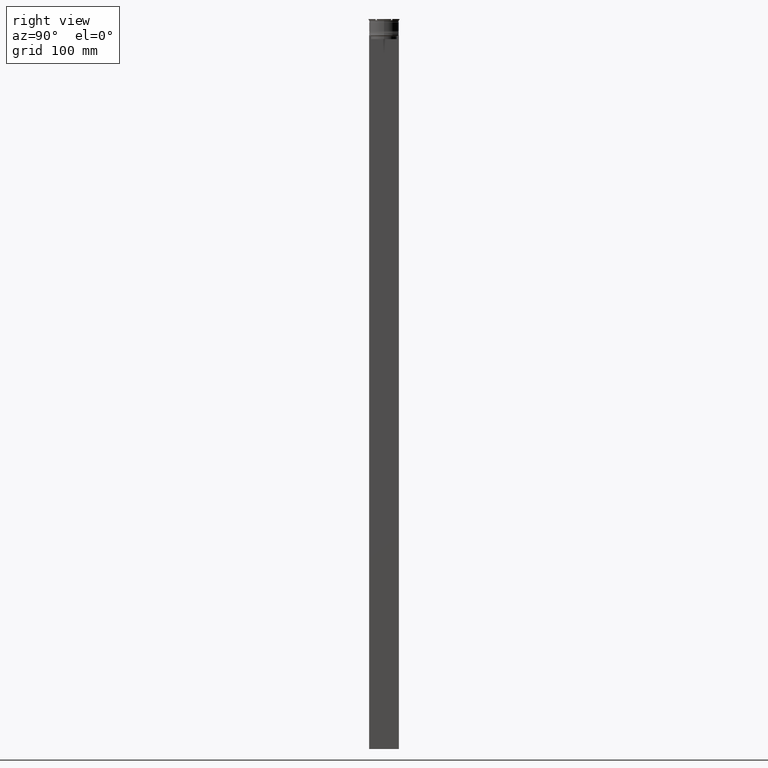
[diagram: clean part render]
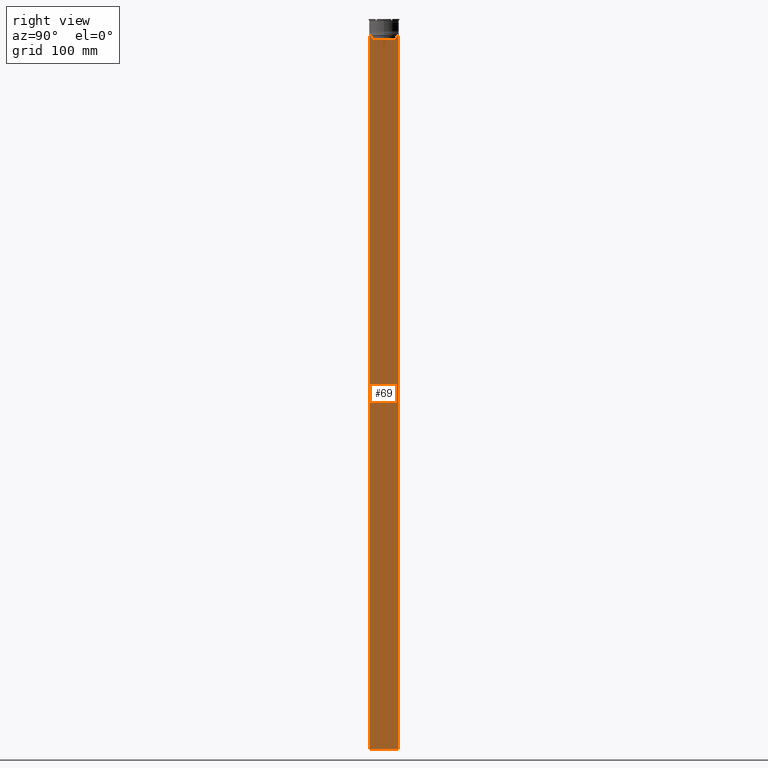
[diagram: same view with one face highlighted and labeled with its STEP entity id]
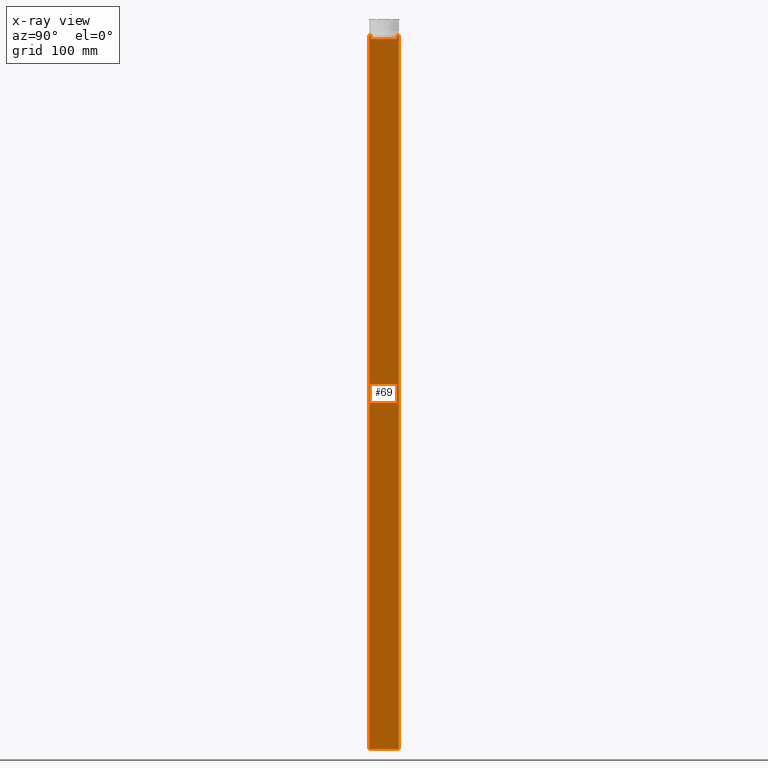
[diagram: x-ray of the same camera — body ghosted, the highlighted face saturated]
A machine part, right view. The second image highlights one B-rep face of the part: STEP entity #69.
The next image is the same camera in x-ray: the body ghosted, the highlighted face saturated — about 0% of this face is hidden behind the body in this view.
In plain terms, the highlighted planar face has unit normal (-1, 0, 0).
Its self-contained STEP definition (entity closure, byte-faithful):
#18 = ORIENTED_EDGE ( 'NONE', *, *, #2115, .T. ) ;
#27 = VERTEX_POINT ( 'NONE', #451 ) ;
#61 = CARTESIAN_POINT ( 'NONE',  ( 0.5000000000000000000, -12.49999999999999289, -14.00000000000000178 ) ) ;
#69 = ADVANCED_FACE ( 'NONE', ( #1288 ), #2446, .F. ) ;
#133 = CARTESIAN_POINT ( 'NONE',  ( 0.5000000000000000000, 12.50000000000000711, 11.01999200639360765 ) ) ;
#141 = VECTOR ( 'NONE', #1338, 1000.000000000000000 ) ;
#199 = LINE ( 'NONE', #1149, #2269 ) ;
#213 = CARTESIAN_POINT ( 'NONE',  ( 0.5000000000000000000, 10.88852607105296144, -17.00000000000000000 ) ) ;
#226 = ORIENTED_EDGE ( 'NONE', *, *, #1414, .T. ) ;
#289 = ORIENTED_EDGE ( 'NONE', *, *, #1077, .T. ) ;
#354 = VERTEX_POINT ( 'NONE', #2461 ) ;
#368 = EDGE_LOOP ( 'NONE', ( #289, #820, #2852, #1278, #860, #811, #1447, #1568, #18, #2513, #1215, #226 ) ) ;
#447 = CARTESIAN_POINT ( 'NONE',  ( 0.5000000000000000000, 10.88852607105296322, 0.000000000000000000 ) ) ;
#451 = CARTESIAN_POINT ( 'NONE',  ( 0.5000000000000000000, 12.50000000000000711, -14.00000000000000178 ) ) ;
#478 = DIRECTION ( 'NONE',  ( -0.000000000000000000, -0.000000000000000000, 1.000000000000000000 ) ) ;
#573 = EDGE_CURVE ( 'NONE', #2505, #2495, #1238, .T. ) ;
#605 = CARTESIAN_POINT ( 'NONE',  ( 0.5000000000000000000, 12.38991525394746773, -14.00000000000000178 ) ) ;
#607 = B_SPLINE_CURVE_WITH_KNOTS ( 'NONE', 3,
 ( #665, #1730, #1556, #1311 ),
 .UNSPECIFIED., .F., .F.,
 ( 4, 4 ),
 ( 0.01935560801904634073, 0.02006307108468586772 ),
 .UNSPECIFIED. ) ;
#630 = CARTESIAN_POINT ( 'NONE',  ( 0.5000000000000000000, -12.49999999999999289, 11.01999200639360765 ) ) ;
#636 = CARTESIAN_POINT ( 'NONE',  ( 0.5000000000000000000, -12.49999999999999289, -14.00000000000000178 ) ) ;
#665 = CARTESIAN_POINT ( 'NONE',  ( 0.5000000000000000000, 11.38902980942626719, -14.00000000000000178 ) ) ;
#735 = CARTESIAN_POINT ( 'NONE',  ( 0.5000000000000000000, -10.88852607105296322, -14.50000000000000000 ) ) ;
#768 = EDGE_CURVE ( 'NONE', #2576, #2505, #2636, .T. ) ;
#811 = ORIENTED_EDGE ( 'NONE', *, *, #2544, .T. ) ;
#815 = DIRECTION ( 'NONE',  ( 0.000000000000000000, 0.000000000000000000, -1.000000000000000000 ) ) ;
#820 = ORIENTED_EDGE ( 'NONE', *, *, #1800, .T. ) ;
#832 = DIRECTION ( 'NONE',  ( 0.000000000000000000, -1.000000000000000000, 0.000000000000000000 ) ) ;
#851 = CARTESIAN_POINT ( 'NONE',  ( 0.5000000000000000000, -11.38902980942626719, -14.00000000000000178 ) ) ;
#860 = ORIENTED_EDGE ( 'NONE', *, *, #863, .T. ) ;
#863 = EDGE_CURVE ( 'NONE', #2495, #2706, #2472, .T. ) ;
#874 = DIRECTION ( 'NONE',  ( 0.000000000000000000, 0.000000000000000000, 1.000000000000000000 ) ) ;
#901 = AXIS2_PLACEMENT_3D ( 'NONE', #630, #2610, #874 ) ;
#930 = CARTESIAN_POINT ( 'NONE',  ( 0.5000000000000000000, -11.05536450423839234, -14.33333718996393102 ) ) ;
#953 = LINE ( 'NONE', #61, #2789 ) ;
#962 = VERTEX_POINT ( 'NONE', #2426 ) ;
#1058 = CARTESIAN_POINT ( 'NONE',  ( 0.5000000000000000000, -10.88852607105296144, -17.00000000000000000 ) ) ;
#1077 = EDGE_CURVE ( 'NONE', #1849, #354, #953, .T. ) ;
#1105 = DIRECTION ( 'NONE',  ( 0.000000000000000000, -1.000000000000000000, 0.000000000000000000 ) ) ;
#1109 = VERTEX_POINT ( 'NONE', #2533 ) ;
#1128 = VECTOR ( 'NONE', #2313, 1000.000000000000000 ) ;
#1149 = CARTESIAN_POINT ( 'NONE',  ( 0.5000000000000000000, -12.49999999999999289, -14.00000000000000178 ) ) ;
#1196 = DIRECTION ( 'NONE',  ( 0.000000000000000000, -1.000000000000000000, 0.000000000000000000 ) ) ;
#1215 = ORIENTED_EDGE ( 'NONE', *, *, #2406, .F. ) ;
#1238 = LINE ( 'NONE', #1924, #1390 ) ;
#1260 = VECTOR ( 'NONE', #478, 1000.000000000000000 ) ;
#1278 = ORIENTED_EDGE ( 'NONE', *, *, #573, .T. ) ;
#1288 = FACE_OUTER_BOUND ( 'NONE', #368, .T. ) ;
#1311 = CARTESIAN_POINT ( 'NONE',  ( 0.5000000000000000000, 10.88852607105296322, -14.50000000000000000 ) ) ;
#1338 = DIRECTION ( 'NONE',  ( 0.000000000000000000, -1.000000000000000000, 0.000000000000000000 ) ) ;
#1379 = LINE ( 'NONE', #2493, #2376 ) ;
#1380 = CARTESIAN_POINT ( 'NONE',  ( 0.5000000000000000000, -10.88852607105296322, 0.000000000000000000 ) ) ;
#1390 = VECTOR ( 'NONE', #2575, 1000.000000000000000 ) ;
#1391 = DIRECTION ( 'NONE',  ( 0.000000000000000000, 1.000000000000000000, 0.000000000000000000 ) ) ;
#1414 = EDGE_CURVE ( 'NONE', #27, #1849, #1979, .T. ) ;
#1447 = ORIENTED_EDGE ( 'NONE', *, *, #1480, .T. ) ;
#1480 = EDGE_CURVE ( 'NONE', #2375, #1109, #2396, .T. ) ;
#1523 = EDGE_CURVE ( 'NONE', #962, #1692, #1379, .T. ) ;
#1556 = CARTESIAN_POINT ( 'NONE',  ( 0.5000000000000000000, 11.05536450345590538, -14.33333719074559376 ) ) ;
#1560 = CARTESIAN_POINT ( 'NONE',  ( 0.5000000000000000000, -12.49999999999999289, -14.00000000000000178 ) ) ;
#1568 = ORIENTED_EDGE ( 'NONE', *, *, #2492, .T. ) ;
#1581 = VECTOR ( 'NONE', #1981, 1000.000000000000000 ) ;
#1681 = CARTESIAN_POINT ( 'NONE',  ( 0.5000000000000000000, -12.49999999999999289, 11.01999200639360765 ) ) ;
#1692 = VERTEX_POINT ( 'NONE', #1874 ) ;
#1694 = LINE ( 'NONE', #133, #1953 ) ;
#1730 = CARTESIAN_POINT ( 'NONE',  ( 0.5000000000000000000, 11.22219891375843304, -14.16667035472756808 ) ) ;
#1800 = EDGE_CURVE ( 'NONE', #354, #2576, #607, .T. ) ;
#1849 = VERTEX_POINT ( 'NONE', #605 ) ;
#1874 = CARTESIAN_POINT ( 'NONE',  ( 0.5000000000000000000, 12.50000000000000711, -614.0000000000000000 ) ) ;
#1911 = VECTOR ( 'NONE', #1105, 1000.000000000000000 ) ;
#1912 = VERTEX_POINT ( 'NONE', #2633 ) ;
#1924 = CARTESIAN_POINT ( 'NONE',  ( 0.5000000000000000000, 10.90000000000000213, -17.00000000000000000 ) ) ;
#1944 = CARTESIAN_POINT ( 'NONE',  ( 0.5000000000000000000, -11.22219891450652973, -14.16667035398018903 ) ) ;
#1953 = VECTOR ( 'NONE', #815, 1000.000000000000000 ) ;
#1979 = LINE ( 'NONE', #636, #1911 ) ;
#1981 = DIRECTION ( 'NONE',  ( 0.000000000000000000, 0.000000000000000000, -1.000000000000000000 ) ) ;
#2115 = EDGE_CURVE ( 'NONE', #1912, #962, #2346, .T. ) ;
#2269 = VECTOR ( 'NONE', #832, 1000.000000000000000 ) ;
#2313 = DIRECTION ( 'NONE',  ( 0.000000000000000000, 0.000000000000000000, -1.000000000000000000 ) ) ;
#2345 = CARTESIAN_POINT ( 'NONE',  ( 0.5000000000000000000, -11.38902980942626719, -14.00000000000000178 ) ) ;
#2346 = LINE ( 'NONE', #1681, #1128 ) ;
#2375 = VERTEX_POINT ( 'NONE', #2345 ) ;
#2376 = VECTOR ( 'NONE', #1391, 1000.000000000000000 ) ;
#2396 = LINE ( 'NONE', #1560, #141 ) ;
#2406 = EDGE_CURVE ( 'NONE', #27, #1692, #1694, .T. ) ;
#2426 = CARTESIAN_POINT ( 'NONE',  ( 0.5000000000000000000, -12.49999999999999289, -614.0000000000000000 ) ) ;
#2446 = PLANE ( 'NONE',  #901 ) ;
#2461 = CARTESIAN_POINT ( 'NONE',  ( 0.5000000000000000000, 11.38902980942626719, -14.00000000000000178 ) ) ;
#2472 = LINE ( 'NONE', #1380, #1260 ) ;
#2474 = CARTESIAN_POINT ( 'NONE',  ( 0.5000000000000000000, 10.88852607105296322, -14.50000000000000000 ) ) ;
#2492 = EDGE_CURVE ( 'NONE', #1109, #1912, #199, .T. ) ;
#2493 = CARTESIAN_POINT ( 'NONE',  ( 0.5000000000000000000, -12.49999999999999289, -614.0000000000000000 ) ) ;
#2495 = VERTEX_POINT ( 'NONE', #1058 ) ;
#2505 = VERTEX_POINT ( 'NONE', #213 ) ;
#2513 = ORIENTED_EDGE ( 'NONE', *, *, #1523, .T. ) ;
#2533 = CARTESIAN_POINT ( 'NONE',  ( 0.5000000000000000000, -12.38991525394746773, -14.00000000000000178 ) ) ;
#2544 = EDGE_CURVE ( 'NONE', #2706, #2375, #2777, .T. ) ;
#2575 = DIRECTION ( 'NONE',  ( 0.000000000000000000, -1.000000000000000000, 0.000000000000000000 ) ) ;
#2576 = VERTEX_POINT ( 'NONE', #2474 ) ;
#2610 = DIRECTION ( 'NONE',  ( -1.000000000000000000, 0.000000000000000000, 0.000000000000000000 ) ) ;
#2633 = CARTESIAN_POINT ( 'NONE',  ( 0.5000000000000000000, -12.49999999999999289, -14.00000000000000178 ) ) ;
#2636 = LINE ( 'NONE', #447, #1581 ) ;
#2691 = CARTESIAN_POINT ( 'NONE',  ( 0.5000000000000000000, -10.88852607105296322, -14.50000000000000000 ) ) ;
#2706 = VERTEX_POINT ( 'NONE', #735 ) ;
#2777 = B_SPLINE_CURVE_WITH_KNOTS ( 'NONE', 3,
 ( #2691, #930, #1944, #851 ),
 .UNSPECIFIED., .F., .F.,
 ( 4, 4 ),
 ( 0.05041323384703226551, 0.05112713601261605068 ),
 .UNSPECIFIED. ) ;
#2789 = VECTOR ( 'NONE', #1196, 1000.000000000000000 ) ;
#2852 = ORIENTED_EDGE ( 'NONE', *, *, #768, .T. ) ;